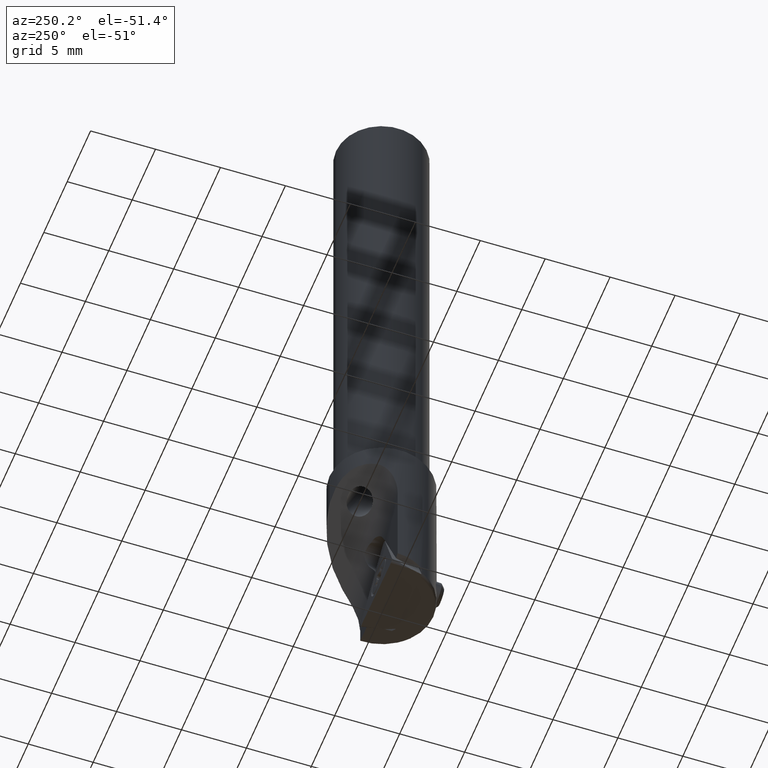
[diagram: clean part render]
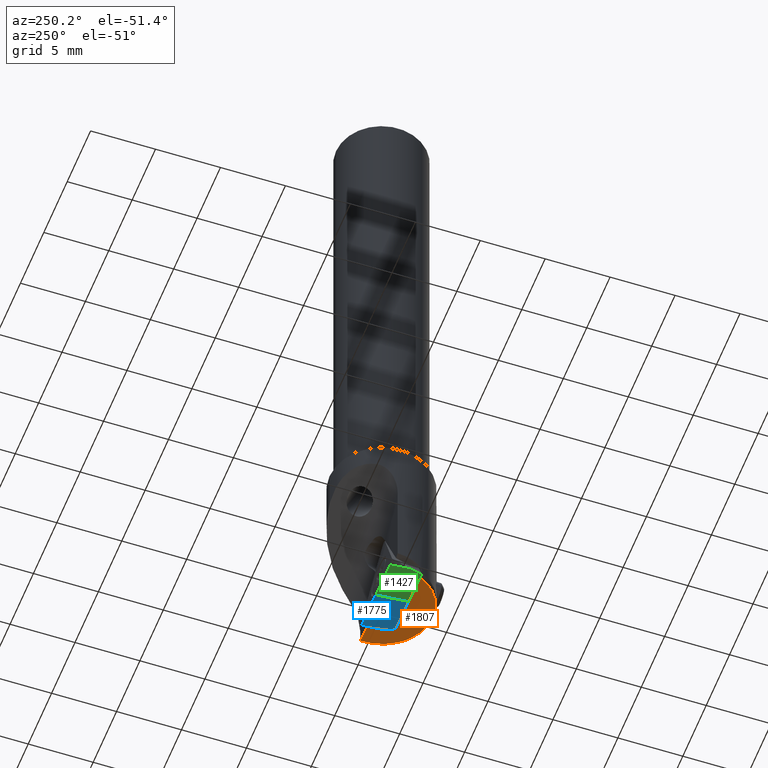
[diagram: same view with three faces highlighted in distinct colors, each labeled with its STEP entity id]
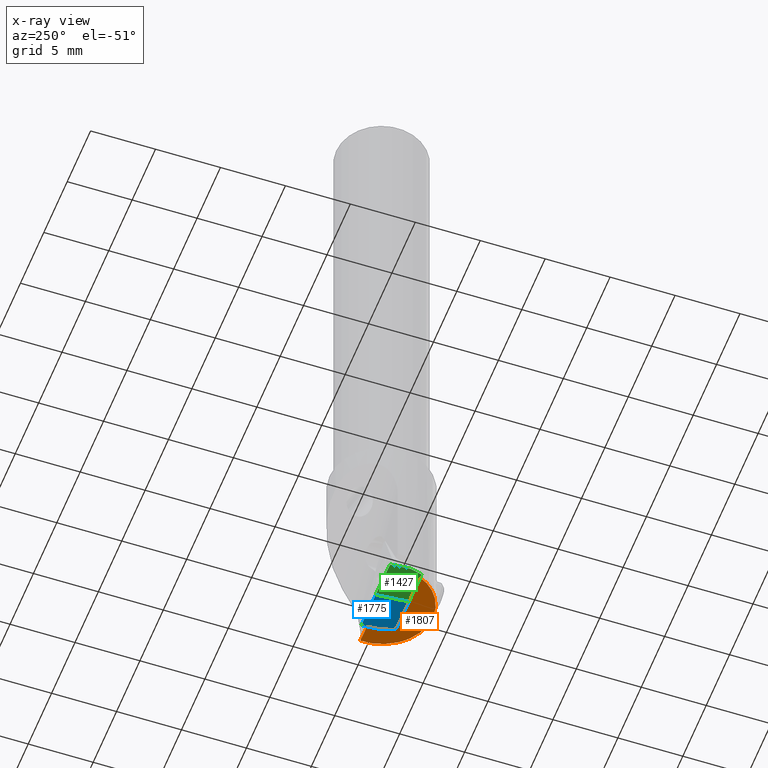
[diagram: x-ray of the same camera — body ghosted, the three highlighted faces saturated]
A machine part, auxiliary view with three faces highlighted in distinct colors.
The next image is the same camera in x-ray (body ghosted, the three faces saturated) — at least one of them is partly hidden behind the body in this view.
Their STEP definitions:

[orange] entity #1807 — the highlighted planar face has unit normal (-0.0521, 0.0001, 0.9986).
#691=VERTEX_POINT('NONE',#1905);
#695=VERTEX_POINT('NONE',#1909);
#767=EDGE_CURVE('NONE',#1449,#695,#1988,.T.);
#799=VERTEX_POINT('NONE',#2026);
#879=VERTEX_POINT('NONE',#2115);
#891=EDGE_CURVE('NONE',#799,#1589,#2127,.T.);
#915=EDGE_CURVE('NONE',#1035,#691,#2159,.T.);
#935=EDGE_CURVE('NONE',#879,#691,#2180,.T.);
#941=EDGE_CURVE('NONE',#695,#799,#2186,.T.);
#1017=VERTEX_POINT('NONE',#2267);
#1035=VERTEX_POINT('NONE',#2285);
#1085=VERTEX_POINT('NONE',#2340);
#1119=EDGE_CURVE('NONE',#1017,#1085,#2377,.T.);
#1167=EDGE_CURVE('NONE',#1085,#1449,#2428,.T.);
#1187=EDGE_CURVE('NONE',#879,#1589,#2448,.T.);
#1449=VERTEX_POINT('NONE',#2744);
#1589=VERTEX_POINT('NONE',#2899);
#1807=ADVANCED_FACE('NONE',(#3139),#3140,.F.);
#1811=EDGE_CURVE('NONE',#1017,#1035,#3144,.T.);
#1905=CARTESIAN_POINT('',(2.37149853651869,-0.309105491158445,-16.3701907818327));
#1909=CARTESIAN_POINT('',(-3.23647372689257,-1.7931084225819,-16.6627938977984));
#1988=B_SPLINE_CURVE_WITH_KNOTS('',3,(#3386,#3387,#3388,#3389,#3390,#3391,#3392,#3393,#3394,#3395,#3396,#3397,#3398,#3399,#3400,#3401,#3402,#3403,#3404,#3405,#3406,#3407),.UNSPECIFIED.,.F.,.F.,(4,2,2,2,2,2,2,2,2,2,4),(0.00272415539824717,0.00376376736947149,0.00428357335508365,0.00480337934069581,0.00532318532630797,0.00584299131192013,0.00636279729753229,0.00662270029033837,0.00675265178674141,0.00681762753494293,0.00688260328314445),.UNSPECIFIED.);
#2026=CARTESIAN_POINT('',(-3.23646488856789,-1.7892357919141,-16.6627938977984));
#2115=CARTESIAN_POINT('',(2.29997100003988,-1.61375817163316,-16.3737696264397));
#2127=LINE('',#3584,#3585);
#2159=LINE('',#3622,#3623);
#2180=LINE('',#3666,#3667);
#2186=LINE('',#3675,#3676);
#2267=CARTESIAN_POINT('',(3.99499687108763,0.199999999999999,-16.2854921537674));
#2285=CARTESIAN_POINT('',(2.4974104048823,0.199999999999999,-16.3636778598889));
#2340=CARTESIAN_POINT('',(2.50677162839053,-3.11706528694804,-16.3627938977984));
#2377=(B_SPLINE_CURVE(3,(#4002,#4003,#4004,#4005),.UNSPECIFIED.,.F.,.F.)B_SPLINE_CURVE_WITH_KNOTS((4,4),(6.23088220089242,7.17439730713295),.UNSPECIFIED.)RATIONAL_B_SPLINE_CURVE((1.0,0.927180626584929,0.927180626584929,1.0))BOUNDED_CURVE()REPRESENTATION_ITEM('')GEOMETRIC_REPRESENTATION_ITEM()CURVE());
#2428=B_SPLINE_CURVE_WITH_KNOTS('',3,(#4085,#4086,#4087,#4088,#4089,#4090,#4091,#4092),.UNSPECIFIED.,.F.,.F.,(4,2,2,4),(4.91717240945621E-006,0.00136453628532831,0.00204434584178774,0.00272415539824717),.UNSPECIFIED.);
#2448=LINE('',#4142,#4143);
#2744=CARTESIAN_POINT('',(-2.56975833255477E-011,-3.96999784255777,-16.4935653205717));
#2899=CARTESIAN_POINT('',(2.05834315137402,-1.81342056323982,-16.3863606966152));
#3139=FACE_OUTER_BOUND('',#5212,.T.);
#3140=PLANE('',#5213);
#3144=LINE('',#5220,#5221);
#3386=CARTESIAN_POINT('',(-2.56975833255477E-011,-3.96999784255777,-16.4935653205717));
#3387=CARTESIAN_POINT('',(-0.342642310773909,-3.96133313189058,-16.5114549568264));
#3388=CARTESIAN_POINT('',(-0.688878284549764,-3.90479671350284,-16.5295379143325));
#3389=CARTESIAN_POINT('',(-1.17926602291057,-3.75327745410004,-16.5551580367752));
#3390=CARTESIAN_POINT('',(-1.33921490663954,-3.69162756829262,-16.5635159629991));
#3391=CARTESIAN_POINT('',(-1.65184089855715,-3.54526581582028,-16.5798549198569));
#3392=CARTESIAN_POINT('',(-1.80407065123693,-3.46049979474803,-16.5878126014931));
#3393=CARTESIAN_POINT('',(-2.0914351903709,-3.27295650299597,-16.6028376201238));
#3394=CARTESIAN_POINT('',(-2.22785782317577,-3.16963416865148,-16.6099722576981));
#3395=CARTESIAN_POINT('',(-2.48592388181674,-2.94354615779607,-16.6234722595548));
#3396=CARTESIAN_POINT('',(-2.60828773456645,-2.81994369717244,-16.6298753354511));
#3397=CARTESIAN_POINT('',(-2.83297925887942,-2.55581076024605,-16.6416374591483));
#3398=CARTESIAN_POINT('',(-2.9354202205201,-2.41564177591914,-16.6470023785035));
#3399=CARTESIAN_POINT('',(-3.07071292230349,-2.1927598638246,-16.6540922705533));
#3400=CARTESIAN_POINT('',(-3.11264971891734,-2.11664381344332,-16.6562907681008));
#3401=CARTESIAN_POINT('',(-3.16887407305027,-1.99887940700649,-16.6592401501646));
#3402=CARTESIAN_POINT('',(-3.18649158916813,-1.9591340144364,-16.6601646577779));
#3403=CARTESIAN_POINT('',(-3.20995770673658,-1.89822383649129,-16.6613970298654));
#3404=CARTESIAN_POINT('',(-3.21729234783975,-1.87773281663856,-16.6617823969318));
#3405=CARTESIAN_POINT('',(-3.22991282894132,-1.83609815689845,-16.6624462454112));
#3406=CARTESIAN_POINT('',(-3.2365231939402,-1.8147830739174,-16.6627938977984));
#3407=CARTESIAN_POINT('',(-3.23647372689257,-1.7931084225819,-16.6627938977984));
#3584=CARTESIAN_POINT('',(-0.839047468261007,-1.80018632905256,-16.5376286855625));
#3585=VECTOR('',#5574,1000.0);
#3622=CARTESIAN_POINT('',(2.71608067757903,1.08415999246025,-16.3523669133038));
#3623=VECTOR('',#5654,1000.0);
#3666=CARTESIAN_POINT('',(1.69369407251416,-12.6721680868234,-16.4041043900741));
#3667=VECTOR('',#5667,1000.0);
#3675=CARTESIAN_POINT('',(-3.23601196882978,-1.59078292537446,-16.6627938977984));
#3676=VECTOR('',#5671,1000.0);
#4002=CARTESIAN_POINT('',(3.99499687108763,0.199999999999999,-16.2854921537674));
#4003=CARTESIAN_POINT('',(4.06034948246132,-1.10541738977633,-16.2819246948321));
#4004=CARTESIAN_POINT('',(3.52531341001206,-2.29794492678414,-16.3097156637885));
#4005=CARTESIAN_POINT('',(2.50677162839053,-3.11706528694804,-16.3627938977984));
#4085=CARTESIAN_POINT('',(2.50677162839053,-3.11706528694804,-16.3627938977984));
#4086=CARTESIAN_POINT('',(2.15287798118078,-3.40166970572862,-16.381235998221));
#4087=CARTESIAN_POINT('',(1.75128150889312,-3.62221606261181,-16.402176191169));
#4088=CARTESIAN_POINT('',(1.11415212697525,-3.83919973685598,-16.4354134654499));
#4089=CARTESIAN_POINT('',(0.892575275469402,-3.89355896566815,-16.4469750301054));
#4090=CARTESIAN_POINT('',(0.447384347473637,-3.96155916727405,-16.4702093701057));
#4091=CARTESIAN_POINT('',(0.224056209157483,-3.9756637576093,-16.4818671620047));
#4092=CARTESIAN_POINT('',(-2.56975833255477E-011,-3.96999784255777,-16.4935653205717));
#4142=CARTESIAN_POINT('',(3.01359222798422,-1.0240772972664,-16.3365832879883));
#4143=VECTOR('',#5929,1000.0);
#5212=EDGE_LOOP('',(#6771,#6772,#6773,#6774,#6775,#6776,#6777,#6778,#6779));
#5213=AXIS2_PLACEMENT_3D('',#6780,#6781,#6782);
#5220=CARTESIAN_POINT('',(4.1330044242329,0.199999999999999,-16.2782870819827));
#5221=VECTOR('',#6784,1000.0);
#5574=DIRECTION('',(0.998629534754574,-0.00456137913876276,0.0521368021287828));
#5654=DIRECTION('',(-0.240067580333391,-0.970676751804735,-0.0124177445085462));
#5667=DIRECTION('',(0.054742548320817,0.998496745710351,0.00273901609753521));
#5671=DIRECTION('',(0.00228224750015294,0.999997395669783,-5.55110066618893E-017));
#5929=DIRECTION('',(-0.770251613062791,-0.636475803812129,-0.04013731101946));
#6771=ORIENTED_EDGE('',*,*,#1811,.F.);
#6772=ORIENTED_EDGE('',*,*,#1119,.T.);
#6773=ORIENTED_EDGE('',*,*,#1167,.T.);
#6774=ORIENTED_EDGE('',*,*,#767,.T.);
#6775=ORIENTED_EDGE('',*,*,#941,.T.);
#6776=ORIENTED_EDGE('',*,*,#891,.T.);
#6777=ORIENTED_EDGE('',*,*,#1187,.F.);
#6778=ORIENTED_EDGE('',*,*,#935,.T.);
#6779=ORIENTED_EDGE('',*,*,#915,.F.);
#6780=CARTESIAN_POINT('',(5.16917532321155,-1.82762972137001,-16.2239492760088));
#6781=DIRECTION('',(-0.0521368021287828,0.000118989396212118,0.998639944977822));
#6782=DIRECTION('',(-0.00228224750015294,-0.999997395669783,5.55053418067256E-017));
#6784=DIRECTION('',(-0.998639952047432,-2.89499958297542E-018,-0.0521368024978717));

[blue] entity #1775 — the highlighted planar face has unit normal (0.0493, -0.1046, -0.9933).
#763=EDGE_CURVE('NONE',#1155,#1515,#1983,.T.);
#885=VERTEX_POINT('NONE',#2121);
#1055=EDGE_CURVE('NONE',#1617,#1419,#2308,.T.);
#1155=VERTEX_POINT('NONE',#2416);
#1279=EDGE_CURVE('NONE',#1317,#1515,#2556,.T.);
#1317=VERTEX_POINT('NONE',#2597);
#1409=EDGE_CURVE('NONE',#1419,#885,#2699,.T.);
#1419=VERTEX_POINT('NONE',#2709);
#1515=VERTEX_POINT('NONE',#2819);
#1617=VERTEX_POINT('NONE',#2934);
#1635=EDGE_CURVE('NONE',#1617,#1155,#2953,.T.);
#1651=EDGE_CURVE('NONE',#885,#1317,#2970,.T.);
#1775=ADVANCED_FACE('NONE',(#3105),#3106,.T.);
#1983=LINE('',#3379,#3380);
#2121=CARTESIAN_POINT('',(2.28345690711769,-0.839932219197016,-16.537241537809));
#2308=LINE('',#3879,#3880);
#2416=CARTESIAN_POINT('',(-3.94405902526741,-0.812641849153477,-16.8491718947684));
#2556=LINE('',#4286,#4287);
#2597=CARTESIAN_POINT('',(2.29852199060521,0.723674745605115,-16.7012096596285));
#2699=LINE('',#4527,#4528);
#2709=CARTESIAN_POINT('',(1.95244919391302,-1.80770233501796,-16.4517203442701));
#2819=CARTESIAN_POINT('',(-3.92899394177989,0.750965115648658,-17.0131400165879));
#2934=CARTESIAN_POINT('',(-3.63172707151254,-1.78323122353042,-16.7314264284794));
#2953=LINE('',#4929,#4930);
#2970=LINE('',#4952,#4953);
#3105=FACE_OUTER_BOUND('',#5163,.T.);
#3106=PLANE('',#5164);
#3379=CARTESIAN_POINT('',(-3.92899394177989,0.750965115648658,-17.0131400165879));
#3380=VECTOR('',#5408,1000.0);
#3879=CARTESIAN_POINT('',(-3.95339690499231,-1.78182159425242,-16.7475385648545));
#3880=VECTOR('',#5797,1000.0);
#4286=CARTESIAN_POINT('',(-3.92899394177989,0.750965115648658,-17.0131400165879));
#4287=VECTOR('',#6086,1000.0);
#4527=CARTESIAN_POINT('',(2.76489676010824,0.567657645639145,-16.6616293064392));
#4528=VECTOR('',#6260,1000.0);
#4929=CARTESIAN_POINT('',(-4.39833559920038,0.599048534705655,-17.0204288102996));
#4930=VECTOR('',#6569,1000.0);
#4952=CARTESIAN_POINT('',(2.29852199060521,0.723674745605115,-16.7012096596285));
#4953=VECTOR('',#6590,1000.0);
#5163=EDGE_LOOP('',(#6733,#6734,#6735,#6736,#6737,#6738));
#5164=AXIS2_PLACEMENT_3D('',#6739,#6740,#6741);
#5408=DIRECTION('',(0.00958184481839183,0.994500913725547,-0.104288641993888));
#5797=DIRECTION('',(0.998738333318114,-0.00437669513636773,0.0500258543219244));
#6086=DIRECTION('',(-0.998738333318114,0.00437669513636772,-0.0500258543219243));
#6260=DIRECTION('',(0.322499688569454,0.942895130561794,-0.0833230078397428));
#6569=DIRECTION('',(-0.304303959690376,0.945641924579085,-0.114719007122279));
#6590=DIRECTION('',(0.00958184481839238,0.994500913725547,-0.104288641993888));
#6733=ORIENTED_EDGE('',*,*,#1055,.F.);
#6734=ORIENTED_EDGE('',*,*,#1635,.T.);
#6735=ORIENTED_EDGE('',*,*,#763,.T.);
#6736=ORIENTED_EDGE('',*,*,#1279,.F.);
#6737=ORIENTED_EDGE('',*,*,#1651,.F.);
#6738=ORIENTED_EDGE('',*,*,#1409,.F.);
#6739=CARTESIAN_POINT('',(-3.92899394177989,0.750965115648658,-17.0131400165879));
#6740=DIRECTION('',(0.0492943182408618,-0.104636404462006,-0.993288121871208));
#6741=DIRECTION('',(-0.0998387942387509,0.988999901155166,-0.109139409380958));

[green] entity #1427 — the highlighted planar face has unit normal (0.0514, -0.1046, -0.9932).
#795=EDGE_CURVE('NONE',#1717,#1571,#2022,.T.);
#875=VERTEX_POINT('NONE',#2111);
#1147=EDGE_CURVE('NONE',#1571,#1625,#2408,.T.);
#1367=VERTEX_POINT('NONE',#2651);
#1371=EDGE_CURVE('NONE',#1367,#1717,#2655,.T.);
#1427=ADVANCED_FACE('NONE',(#2719),#2720,.T.);
#1571=VERTEX_POINT('NONE',#2880);
#1597=VERTEX_POINT('NONE',#2910);
#1625=VERTEX_POINT('NONE',#2942);
#1675=EDGE_CURVE('NONE',#1625,#1597,#2996,.T.);
#1717=VERTEX_POINT('NONE',#3041);
#1783=EDGE_CURVE('NONE',#1367,#875,#3114,.T.);
#1787=EDGE_CURVE('NONE',#875,#1597,#3118,.T.);
#2022=LINE('',#3450,#3451);
#2111=CARTESIAN_POINT('',(-3.9399056046035,-0.812083129772896,-16.855558086511));
#2408=LINE('',#4059,#4060);
#2651=CARTESIAN_POINT('',(-3.62800272406107,-1.78273022320574,-16.7371528883942));
#2655=LINE('',#4450,#4451);
#2719=FACE_OUTER_BOUND('',#4550,.T.);
#2720=PLANE('',#4551);
#2880=CARTESIAN_POINT('',(2.28693192707812,-0.840525075288212,-16.5304651616786));
#2910=CARTESIAN_POINT('',(-3.92420481773062,0.751520990303354,-17.0194936929649));
#2942=CARTESIAN_POINT('',(2.30263271395101,0.723079044788034,-16.6944007681325));
#2996=LINE('',#4988,#4989);
#3041=CARTESIAN_POINT('',(1.95556522351384,-1.80823394552674,-16.44564400835));
#3114=LINE('',#5177,#5178);
#3118=LINE('',#5183,#5184);
#3450=CARTESIAN_POINT('',(2.76889391976228,0.566975709858817,-16.6538347448029));
#3451=VECTOR('',#5466,1000.0);
#4059=CARTESIAN_POINT('',(2.30263271395101,0.723079044788034,-16.6944007681325));
#4060=VECTOR('',#5897,1000.0);
#4450=CARTESIAN_POINT('',(2.2772000155672,-1.8097030571239,-16.4288519859559));
#4451=VECTOR('',#6181,1000.0);
#4550=EDGE_LOOP('',(#6284,#6285,#6286,#6287,#6288,#6289));
#4551=AXIS2_PLACEMENT_3D('',#6290,#6291,#6292);
#4988=CARTESIAN_POINT('',(2.30263271395101,0.723079044788034,-16.6944007681325));
#4989=VECTOR('',#6612,1000.0);
#5177=CARTESIAN_POINT('',(-3.79896002879282,-1.25070816989737,-16.8020520438655));
#5178=VECTOR('',#6749,1000.0);
#5183=CARTESIAN_POINT('',(-3.92420481773062,0.751520990303354,-17.0194936929649));
#5184=VECTOR('',#6750,1000.0);
#5466=DIRECTION('',(0.322849451655189,0.942835459199267,-0.0826409610450624));
#5897=DIRECTION('',(0.0099861712327879,0.994499104394586,-0.104267961246377));
#6181=DIRECTION('',(0.998629534754574,-0.00456137913876303,0.0521368021287859));
#6284=ORIENTED_EDGE('',*,*,#1371,.F.);
#6285=ORIENTED_EDGE('',*,*,#1783,.T.);
#6286=ORIENTED_EDGE('',*,*,#1787,.T.);
#6287=ORIENTED_EDGE('',*,*,#1675,.F.);
#6288=ORIENTED_EDGE('',*,*,#1147,.F.);
#6289=ORIENTED_EDGE('',*,*,#795,.F.);
#6290=CARTESIAN_POINT('',(2.30263271395101,0.723079044788034,-16.6944007681325));
#6291=DIRECTION('',(0.0513743973198047,-0.104645712662865,-0.993181728648543));
#6292=DIRECTION('',(-7.12962984758601E-019,0.994494995348291,-0.104784083844842));
#6612=DIRECTION('',(-0.998629534754574,0.00456137913876303,-0.0521368021287858));
#6749=DIRECTION('',(-0.30388591511961,0.945698160058834,-0.11536178159708));
#6750=DIRECTION('',(0.00998617123278764,0.994499104394586,-0.104267961246377));